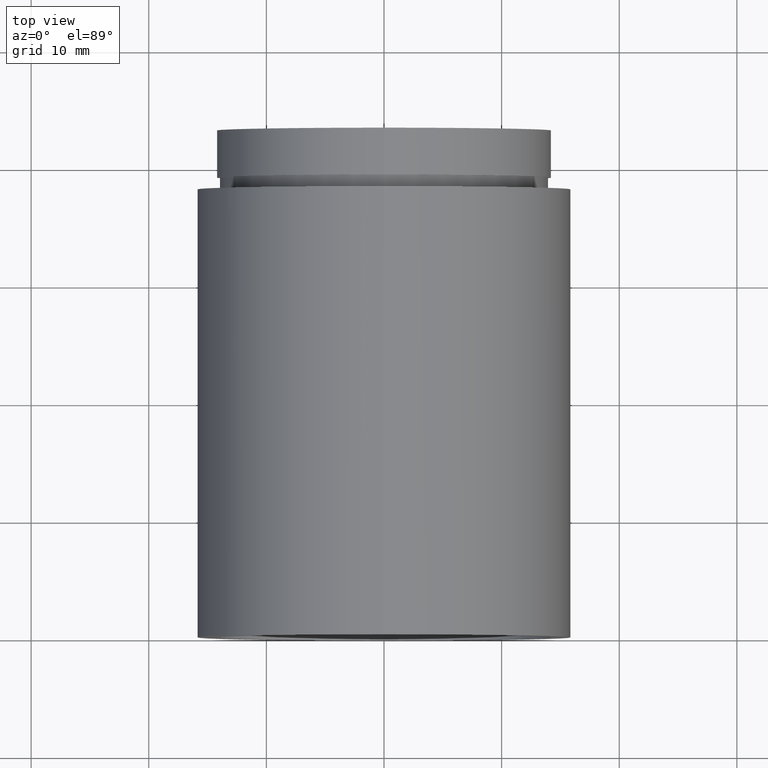
[diagram: clean part render]
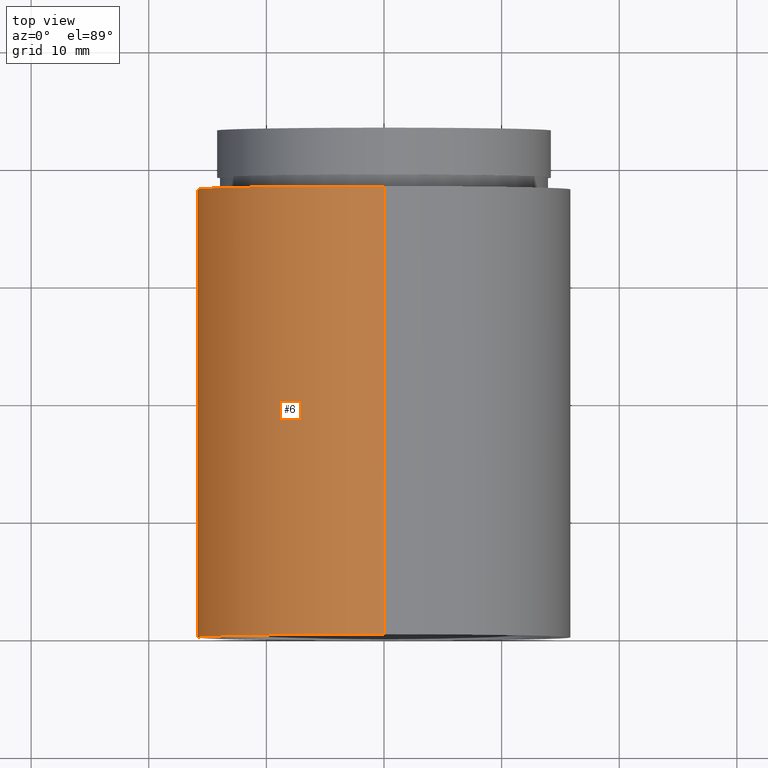
[diagram: same view with one face highlighted and labeled with its STEP entity id]
A machine part, top view. The second image highlights one B-rep face of the part: STEP entity #6.
In plain terms, the highlighted cylindrical surface (partial cylindrical patch) has radius 15.85 mm, axis along (-0, 1, -0).
Its self-contained STEP definition (entity closure, byte-faithful):
#6 = ADVANCED_FACE ( 'NONE', ( #476 ), #107, .T. ) ;
#36 = DIRECTION ( 'NONE',  ( -0.0000000000000000000, 1.000000000000000000, -0.0000000000000000000 ) ) ;
#42 = DIRECTION ( 'NONE',  ( 0.0000000000000000000, 0.0000000000000000000, 1.000000000000000000 ) ) ;
#43 = ORIENTED_EDGE ( 'NONE', *, *, #266, .F. ) ;
#46 = ORIENTED_EDGE ( 'NONE', *, *, #538, .T. ) ;
#47 = EDGE_LOOP ( 'NONE', ( #43, #151, #46, #575 ) ) ;
#53 = VERTEX_POINT ( 'NONE', #336 ) ;
#58 = AXIS2_PLACEMENT_3D ( 'NONE', #100, #573, #191 ) ;
#60 = CIRCLE ( 'NONE', #140, 15.85000000000002100 ) ;
#100 = CARTESIAN_POINT ( 'NONE',  ( 0.0000000000000000000, 161.3761669434274500, 0.0000000000000000000 ) ) ;
#102 = VERTEX_POINT ( 'NONE', #530 ) ;
#107 = CYLINDRICAL_SURFACE ( 'NONE', #58, 15.85000000000002100 ) ;
#140 = AXIS2_PLACEMENT_3D ( 'NONE', #374, #320, #42 ) ;
#151 = ORIENTED_EDGE ( 'NONE', *, *, #604, .T. ) ;
#167 = CARTESIAN_POINT ( 'NONE',  ( 0.0000000000000000000, -2.775557561562891400E-014, 15.85000000000002100 ) ) ;
#173 = DIRECTION ( 'NONE',  ( 0.0000000000000000000, 0.0000000000000000000, 1.000000000000000000 ) ) ;
#191 = DIRECTION ( 'NONE',  ( 0.0000000000000000000, 0.0000000000000000000, 1.000000000000000000 ) ) ;
#240 = EDGE_CURVE ( 'NONE', #53, #492, #282, .T. ) ;
#247 = VERTEX_POINT ( 'NONE', #167 ) ;
#266 = EDGE_CURVE ( 'NONE', #102, #53, #534, .T. ) ;
#282 = CIRCLE ( 'NONE', #454, 15.85000000000002100 ) ;
#300 = DIRECTION ( 'NONE',  ( -0.0000000000000000000, 1.000000000000000000, -0.0000000000000000000 ) ) ;
#319 = CARTESIAN_POINT ( 'NONE',  ( 0.0000000000000000000, 38.09999999999999400, 15.85000000000002100 ) ) ;
#320 = DIRECTION ( 'NONE',  ( -0.0000000000000000000, 1.000000000000000000, -0.0000000000000000000 ) ) ;
#336 = CARTESIAN_POINT ( 'NONE',  ( 1.941065176648557100E-015, 38.09999999999999400, -15.85000000000002100 ) ) ;
#348 = CARTESIAN_POINT ( 'NONE',  ( 0.0000000000000000000, 38.09999999999999400, 0.0000000000000000000 ) ) ;
#374 = CARTESIAN_POINT ( 'NONE',  ( 0.0000000000000000000, -2.775557561562891400E-014, 0.0000000000000000000 ) ) ;
#423 = CARTESIAN_POINT ( 'NONE',  ( 0.0000000000000000000, 161.3761669434274500, 15.85000000000002100 ) ) ;
#454 = AXIS2_PLACEMENT_3D ( 'NONE', #348, #300, #173 ) ;
#476 = FACE_OUTER_BOUND ( 'NONE', #47, .T. ) ;
#488 = VECTOR ( 'NONE', #36, 1000.000000000000000 ) ;
#492 = VERTEX_POINT ( 'NONE', #319 ) ;
#530 = CARTESIAN_POINT ( 'NONE',  ( 1.941065176648557100E-015, -2.775557561562891400E-014, -15.85000000000002100 ) ) ;
#534 = LINE ( 'NONE', #596, #488 ) ;
#538 = EDGE_CURVE ( 'NONE', #247, #492, #569, .T. ) ;
#563 = DIRECTION ( 'NONE',  ( -0.0000000000000000000, 1.000000000000000000, -0.0000000000000000000 ) ) ;
#569 = LINE ( 'NONE', #423, #579 ) ;
#573 = DIRECTION ( 'NONE',  ( -0.0000000000000000000, 1.000000000000000000, -0.0000000000000000000 ) ) ;
#575 = ORIENTED_EDGE ( 'NONE', *, *, #240, .F. ) ;
#579 = VECTOR ( 'NONE', #563, 1000.000000000000000 ) ;
#596 = CARTESIAN_POINT ( 'NONE',  ( 1.941065176648557100E-015, 161.3761669434274500, -15.85000000000002100 ) ) ;
#604 = EDGE_CURVE ( 'NONE', #102, #247, #60, .T. ) ;